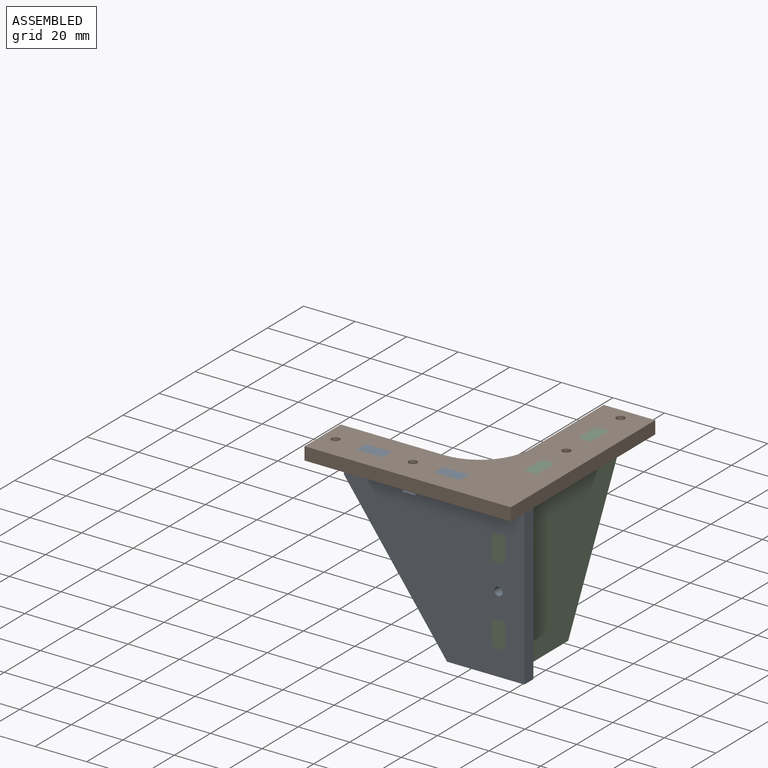
[diagram: assembled view]
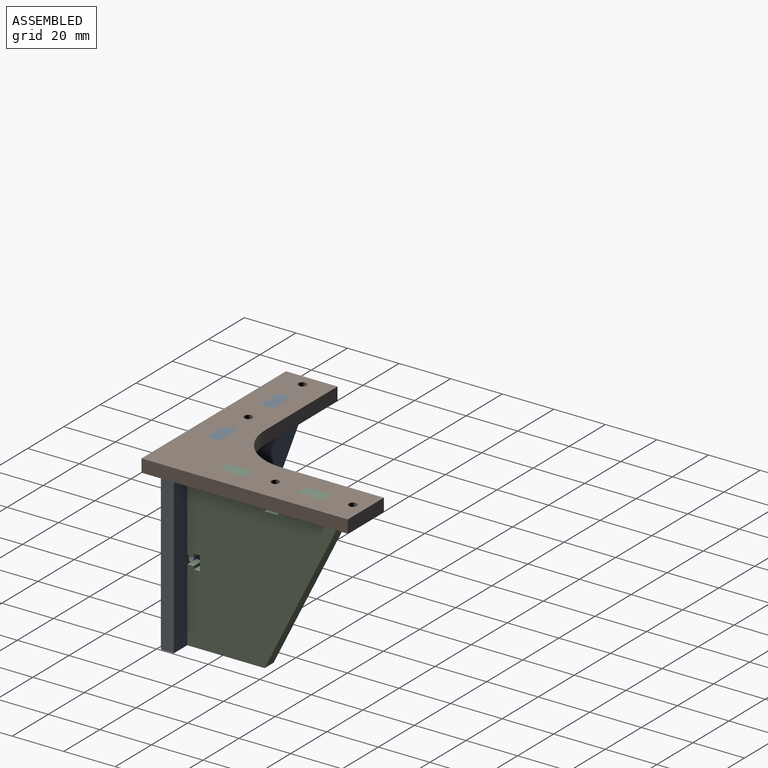
[diagram: assembled view, second angle]
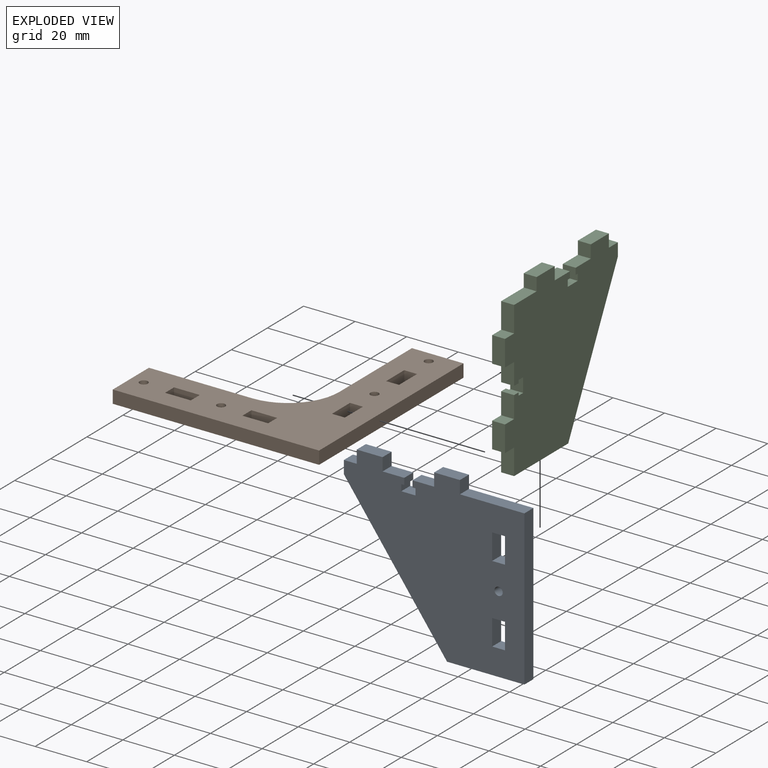
[diagram: exploded view]
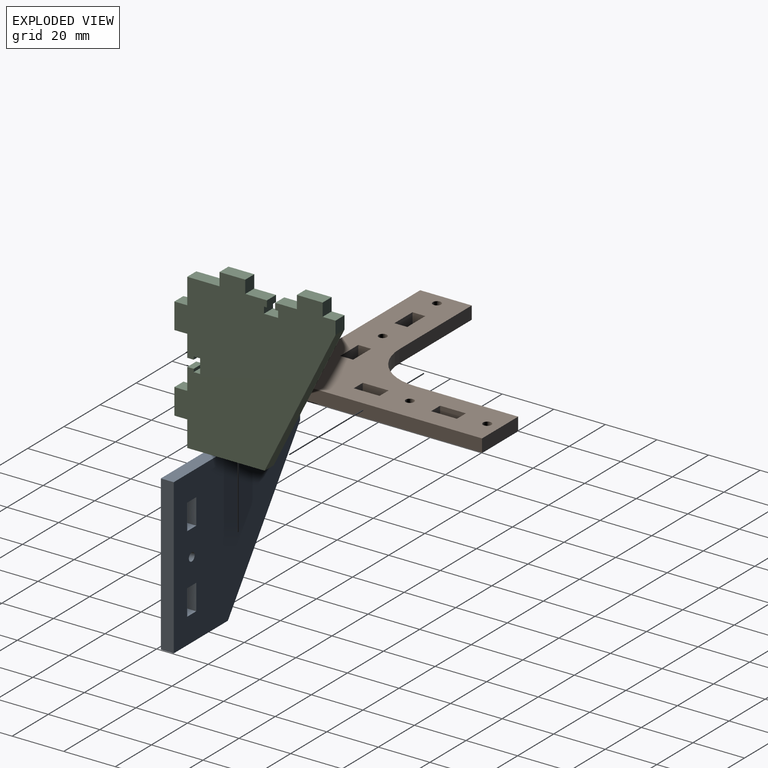
[diagram: exploded view, second angle]
ASSEMBLY  parts=3 mates=2
PART A: 32 faces, bbox 70x5x65 mm
  f0: plane 10x5mm, normal (1,0,0), area 50mm2, adj f1,f29,f30,f31
  f1: plane 5x5mm, normal (0,0,-1), area 25mm2, adj f0,f2,f30,f31
  f2: plane 10x5mm, normal (-1,0,0), area 50mm2, adj f1,f29,f30,f31
  f3: plane 10x5mm, normal (1,0,0), area 50mm2, adj f4,f26,f30,f31
  f4: plane 5x5mm, normal (0,0,-1), area 25mm2, adj f3,f5,f30,f31
  f5: plane 10x5mm, normal (-1,0,0), area 50mm2, adj f4,f26,f30,f31
  f6: plane 5x2.5mm, normal (-1,0,0), area 12.5mm2, adj f7,f27,f30,f31
  f7: plane 5x1.15mm, normal (0,0,-1), area 5.7mm2, adj f6,f8,f30,f31
  f8: plane 5x2.5mm, normal (-1,0,0), area 12.5mm2, adj f7,f9,f30,f31
  f9: plane 5.5x5mm, normal (0,0,1), area 27.5mm2, adj f8,f10,f30,f31
  f10: plane 5x2.5mm, normal (1,0,0), area 12.5mm2, adj f9,f11,f30,f31
  f11: plane 5x1.15mm, normal (0,0,-1), area 5.7mm2, adj f10,f12,f30,f31
  f12: plane 5x2.5mm, normal (1,0,0), area 12.5mm2, adj f11,f13,f30,f31
  f13: plane 8.4x5mm, normal (0,0,1), area 42mm2, adj f12,f14,f30,f31
  f14: plane 5x5mm, normal (1,0,0), area 25mm2, adj f13,f15,f30,f31
  f15: plane 10x5mm, normal (0,0,1), area 50mm2, adj f14,f16,f30,f31
  f16: plane 5x5mm, normal (-1,0,0), area 25mm2, adj f15,f17,f30,f31
  f17: plane 5x5mm, normal (0,0,1), area 25mm2, adj f16,f18,f30,f31
  f18: plane 5x5mm, normal (-1,0,0), area 25mm2, adj f17,f19,f30,f31
  f19: plane 55x40mm, normal (-0.81,0,-0.59), area 340mm2, adj f18,f20,f30,f31
  f20: plane 30x5mm, normal (0,0,-1), area 150mm2, adj f19,f21,f30,f31
  f21: plane 60x5mm, normal (1,0,0), area 300mm2, adj f20,f22,f30,f31
  f22: plane 25x5mm, normal (0,0,1), area 125mm2, adj f21,f23,f30,f31
  f23: plane 5x5mm, normal (1,0,0), area 25mm2, adj f22,f24,f30,f31
  f24: plane 10x5mm, normal (0,0,1), area 50mm2, adj f23,f25,f30,f31
  f25: plane 5x5mm, normal (-1,0,0), area 25mm2, adj f24,f27,f30,f31
  f26: plane 5x5mm, normal (0,0,1), area 25mm2, adj f3,f5,f30,f31
  f27: plane 8.4x5mm, normal (0,0,1), area 42mm2, adj f6,f25,f30,f31
  f28: cylinder r=1.6mm len=5mm, axis (0,1,0), area 50.3mm2, adj f30,f31
  f29: plane 5x5mm, normal (0,0,1), area 25mm2, adj f0,f2,f30,f31
  f30: plane 70x65mm, normal (0,-1,0), area 3070.2mm2, adj f0,f1,f2,f3,f4,f5,f6,f7
  f31: plane 70x65mm, normal (0,1,0), area 3070.2mm2, adj f0,f1,f2,f3,f4,f5,f6,f7
PART B: 29 faces, bbox 80x80x5 mm
  f0: plane 10x5mm, normal (-1,0,0), area 50mm2, adj f1,f26,f27,f28
  f1: plane 5x5mm, normal (0,1,0), area 25mm2, adj f0,f2,f27,f28
  f2: plane 10x5mm, normal (1,0,0), area 50mm2, adj f1,f26,f27,f28
  f3: plane 10x5mm, normal (-1,0,0), area 50mm2, adj f4,f18,f27,f28
  f4: plane 5x5mm, normal (0,1,0), area 25mm2, adj f3,f5,f27,f28
  f5: plane 10x5mm, normal (1,0,0), area 50mm2, adj f4,f18,f27,f28
  f6: plane 5x5mm, normal (-1,0,0), area 25mm2, adj f7,f19,f27,f28
  f7: plane 10x5mm, normal (0,1,0), area 50mm2, adj f6,f8,f27,f28
  f8: plane 5x5mm, normal (1,0,0), area 25mm2, adj f7,f19,f27,f28
  f9: plane 5x5mm, normal (-1,0,0), area 25mm2, adj f10,f20,f27,f28
  f10: plane 10x5mm, normal (0,1,0), area 50mm2, adj f9,f11,f27,f28
  f11: plane 5x5mm, normal (1,0,0), area 25mm2, adj f10,f20,f27,f28
  f12: cylinder r=20mm len=20mm, axis (0,0,-1), area 157.1mm2, adj f13,f21,f27,f28
  f13: plane 40x5mm, normal (0,1,0), area 200mm2, adj f12,f14,f27,f28
  f14: plane 20x5mm, normal (-1,0,0), area 100mm2, adj f13,f15,f27,f28
  f15: plane 80x5mm, normal (0,-1,0), area 400mm2, adj f14,f16,f27,f28
  f16: plane 80x5mm, normal (1,0,0), area 400mm2, adj f15,f17,f27,f28
  f17: plane 20x5mm, normal (0,1,0), area 100mm2, adj f16,f21,f27,f28
  f18: plane 5x5mm, normal (0,-1,0), area 25mm2, adj f3,f5,f27,f28
  f19: plane 10x5mm, normal (0,-1,0), area 50mm2, adj f6,f8,f27,f28
  f20: plane 10x5mm, normal (0,-1,0), area 50mm2, adj f9,f11,f27,f28
  f21: plane 40x5mm, normal (-1,0,0), area 200mm2, adj f12,f17,f27,f28
  f22: cylinder r=1.6mm len=5mm, axis (0,0,-1), area 50.3mm2, adj f27,f28
  f23: cylinder r=1.6mm len=5mm, axis (0,0,-1), area 50.3mm2, adj f27,f28
  f24: cylinder r=1.6mm len=5mm, axis (0,0,-1), area 50.3mm2, adj f27,f28
  f25: cylinder r=1.6mm len=5mm, axis (0,0,-1), area 50.3mm2, adj f27,f28
  f26: plane 5x5mm, normal (0,-1,0), area 25mm2, adj f0,f2,f27,f28
  f27: plane 80x80mm, normal (0,0,1), area 2653.7mm2, adj f0,f1,f2,f3,f4,f5,f6,f7
  f28: plane 80x80mm, normal (0,0,-1), area 2653.7mm2, adj f0,f1,f2,f3,f4,f5,f6,f7
PART C: 39 faces, bbox 62.5x5x65 mm
  f0: plane 5x1.15mm, normal (-1,0,0), area 5.7mm2, adj f1,f36,f37,f38
  f1: plane 5x2.5mm, normal (0,0,-1), area 12.5mm2, adj f0,f2,f37,f38
  f2: plane 8.4x5mm, normal (1,0,0), area 42mm2, adj f1,f3,f37,f38
  f3: plane 5x5mm, normal (0,0,-1), area 25mm2, adj f2,f4,f37,f38
  f4: plane 10x5mm, normal (1,0,0), area 50mm2, adj f3,f5,f37,f38
  f5: plane 5x5mm, normal (0,0,1), area 25mm2, adj f4,f6,f37,f38
  f6: plane 10x5mm, normal (1,0,0), area 50mm2, adj f5,f7,f37,f38
  f7: plane 12.5x5mm, normal (0,0,1), area 62.5mm2, adj f6,f8,f37,f38
  f8: plane 5x5mm, normal (1,0,0), area 25mm2, adj f7,f9,f37,f38
  f9: plane 10x5mm, normal (0,0,1), area 50mm2, adj f8,f10,f37,f38
  f10: plane 5x5mm, normal (-1,0,0), area 25mm2, adj f9,f11,f37,f38
  f11: plane 8.4x5mm, normal (0,0,1), area 42mm2, adj f10,f12,f37,f38
  f12: plane 5x2.5mm, normal (-1,0,0), area 12.5mm2, adj f11,f13,f37,f38
  f13: plane 5x1.15mm, normal (0,0,-1), area 5.8mm2, adj f12,f14,f37,f38
  f14: plane 5x2.5mm, normal (-1,0,0), area 12.5mm2, adj f13,f15,f37,f38
  f15: plane 5.5x5mm, normal (0,0,1), area 27.5mm2, adj f14,f16,f37,f38
  f16: plane 5x2.5mm, normal (1,0,0), area 12.5mm2, adj f15,f17,f37,f38
  f17: plane 5x1.15mm, normal (0,0,-1), area 5.7mm2, adj f16,f18,f37,f38
  f18: plane 5x2.5mm, normal (1,0,0), area 12.5mm2, adj f17,f19,f37,f38
  f19: plane 8.4x5mm, normal (0,0,1), area 42mm2, adj f18,f20,f37,f38
  f20: plane 5x5mm, normal (1,0,0), area 25mm2, adj f19,f21,f37,f38
  f21: plane 10x5mm, normal (0,0,1), area 50mm2, adj f20,f22,f37,f38
  f22: plane 5x5mm, normal (-1,0,0), area 25mm2, adj f21,f23,f37,f38
  f23: plane 5x5mm, normal (0,0,1), area 25mm2, adj f22,f24,f37,f38
  f24: plane 5x5mm, normal (-1,0,0), area 25mm2, adj f23,f25,f37,f38
  f25: plane 55x27.5mm, normal (-0.89,0,-0.45), area 307.5mm2, adj f24,f26,f37,f38
  f26: plane 30x5mm, normal (0,0,-1), area 150mm2, adj f25,f27,f37,f38
  f27: plane 10x5mm, normal (1,0,0), area 50mm2, adj f26,f28,f37,f38
  f28: plane 5x5mm, normal (0,0,-1), area 25mm2, adj f27,f29,f37,f38
  f29: plane 10x5mm, normal (1,0,0), area 50mm2, adj f28,f30,f37,f38
  f30: plane 5x5mm, normal (0,0,1), area 25mm2, adj f29,f31,f37,f38
  f31: plane 8.4x5mm, normal (1,0,0), area 42mm2, adj f30,f32,f37,f38
  f32: plane 5x2.5mm, normal (0,0,1), area 12.5mm2, adj f31,f33,f37,f38
  f33: plane 5x1.15mm, normal (-1,0,0), area 5.8mm2, adj f32,f34,f37,f38
  f34: plane 5x2.5mm, normal (0,0,1), area 12.5mm2, adj f33,f35,f37,f38
  f35: plane 5.5x5mm, normal (1,0,0), area 27.5mm2, adj f34,f36,f37,f38
  f36: plane 5x2.5mm, normal (0,0,-1), area 12.5mm2, adj f0,f35,f37,f38
  f37: plane 65x62.5mm, normal (0,-1,0), area 2850.2mm2, adj f0,f1,f2,f3,f4,f5,f6,f7
  f38: plane 65x62.5mm, normal (0,1,0), area 2850.2mm2, adj f0,f1,f2,f3,f4,f5,f6,f7
PLACE A t=(-36.94,-11.2,0.59)mm fixed
PLACE B t=(-36.94,-23.7,60.59)mm
PLACE C rot(axis=(0,0,-1),90deg) t=(-44.44,-11.2,0.59)mm
MATE fastened C.f5 <-> A.f1  axis (0,0,1) through (-46.94,-13.7,50.59)mm
MATE fastened A.f16 <-> B.f11  axis (-1,0,0) through (-101.94,-13.7,63.09)mm
